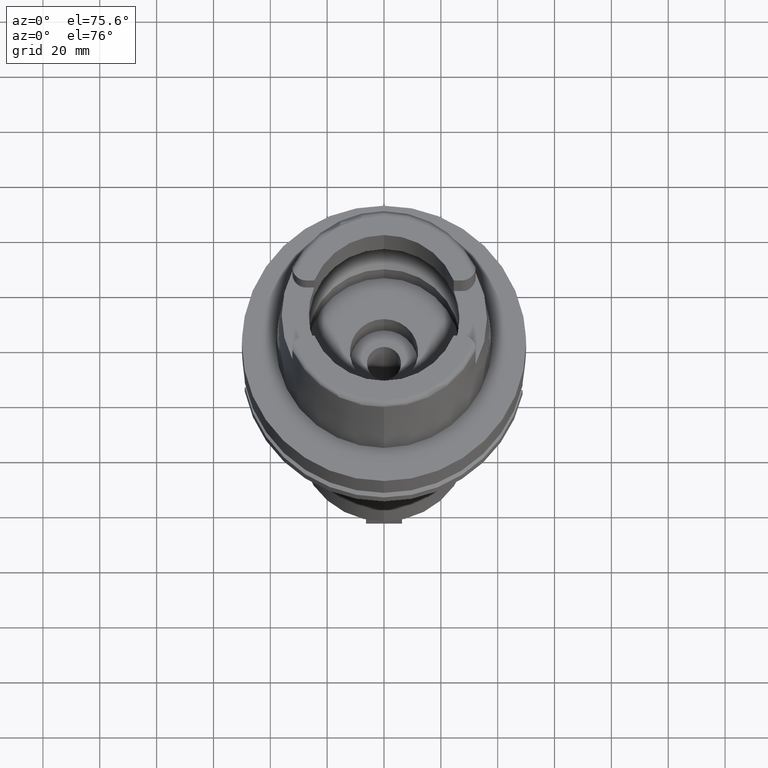
[diagram: clean part render]
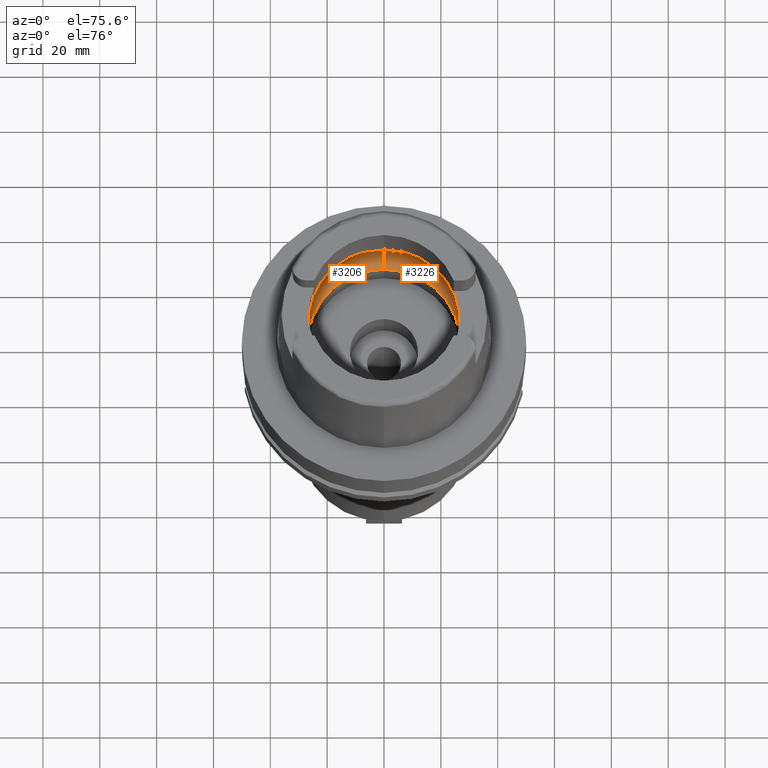
[diagram: same view with one multi-face feature highlighted, each face labeled with its STEP entity id]
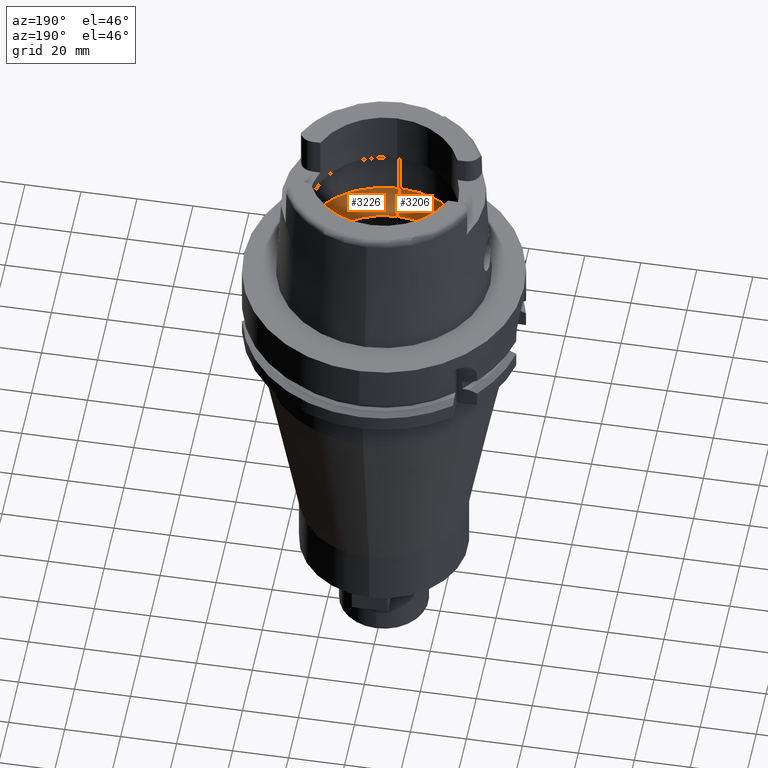
[diagram: same view with one multi-face feature highlighted, each face labeled with its STEP entity id]
A machine part, auxiliary view. The highlighted faces form ONE feature: a constant-radius fillet chain: 2 tangent blend faces with common blend radius 12 mm. The faces share edges in the B-rep.
A second angle (auxiliary view) of the same feature is appended — it is thin or edge-on in the first view.
Their STEP definitions:
[1] entity #3226 (Torus):
#660=CARTESIAN_POINT('',(0.E0,-1.95E1,9.496624327026E0));
#661=DIRECTION('',(-1.E0,0.E0,0.E0));
#662=DIRECTION('',(0.E0,-6.166666666667E-1,-7.872243785746E-1));
#663=AXIS2_PLACEMENT_3D('',#660,#661,#662);
#676=CARTESIAN_POINT('',(3.148971910754E1,0.E0,9.E0));
#677=CARTESIAN_POINT('',(3.148971910754E1,-2.740816369241E-1,9.E0));
#678=CARTESIAN_POINT('',(3.148416657244E1,-8.216274657312E-1,9.037606582852E0));
#679=CARTESIAN_POINT('',(3.145843229729E1,-1.626122314408E0,9.205188491873E0));
#680=CARTESIAN_POINT('',(3.142817542026E1,-2.140654635827E0,9.388263020288E0));
#681=CARTESIAN_POINT('',(3.140918884336E1,-2.390158196044E0,9.496624327026E0));
#686=CARTESIAN_POINT('',(0.E0,0.E0,9.496624327026E0));
#687=DIRECTION('',(0.E0,0.E0,-1.E0));
#688=DIRECTION('',(9.971171061384E-1,-7.587803796965E-2,0.E0));
#689=AXIS2_PLACEMENT_3D('',#686,#687,#688);
#694=CARTESIAN_POINT('',(0.E0,0.E0,4.993178413024E-2));
#695=DIRECTION('',(0.E0,0.E0,1.E0));
#696=DIRECTION('',(0.E0,-1.E0,0.E0));
#697=AXIS2_PLACEMENT_3D('',#694,#695,#696);
#702=CARTESIAN_POINT('',(0.E0,1.95E1,9.496624327026E0));
#703=DIRECTION('',(1.E0,0.E0,0.E0));
#704=DIRECTION('',(0.E0,6.166666666667E-1,-7.872243785746E-1));
#705=AXIS2_PLACEMENT_3D('',#702,#703,#704);
#710=CARTESIAN_POINT('',(0.E0,0.E0,9.496624327026E0));
#711=DIRECTION('',(0.E0,0.E0,-1.E0));
#712=DIRECTION('',(0.E0,1.E0,0.E0));
#713=AXIS2_PLACEMENT_3D('',#710,#711,#712);
#718=CARTESIAN_POINT('',(3.140918884336E1,2.390158196044E0,9.496624327026E0));
#719=CARTESIAN_POINT('',(3.142817530553E1,2.140656143518E0,9.388263675090E0));
#720=CARTESIAN_POINT('',(3.145843215351E1,1.626125992770E0,9.205189397203E0));
#721=CARTESIAN_POINT('',(3.148416663622E1,8.216256622719E-1,9.037606172252E0));
#722=CARTESIAN_POINT('',(3.148971910754E1,2.740808193429E-1,9.E0));
#723=CARTESIAN_POINT('',(3.148971910754E1,0.E0,9.E0));
#735=CARTESIAN_POINT('',(3.140918884336E1,-2.390158196044E0,9.496624327026E0));
#766=CARTESIAN_POINT('',(3.140918884336E1,2.390158196044E0,9.496624327026E0));
#2525=CARTESIAN_POINT('',(0.E0,-3.15E1,9.496624327026E0));
#2526=VERTEX_POINT('',#2525);
#2527=CARTESIAN_POINT('',(0.E0,3.15E1,9.496624327026E0));
#2528=VERTEX_POINT('',#2527);
#2533=VERTEX_POINT('',#735);
#2535=VERTEX_POINT('',#676);
#2536=VERTEX_POINT('',#766);
#2537=CARTESIAN_POINT('',(0.E0,2.69E1,4.993178413024E-2));
#2538=VERTEX_POINT('',#2537);
#2539=CARTESIAN_POINT('',(0.E0,-2.69E1,4.993178413024E-2));
#2540=VERTEX_POINT('',#2539);
#3207=CARTESIAN_POINT('',(0.E0,0.E0,9.496624327026E0));
#3208=DIRECTION('',(0.E0,0.E0,1.E0));
#3209=DIRECTION('',(0.E0,1.E0,0.E0));
#3210=AXIS2_PLACEMENT_3D('',#3207,#3208,#3209);
#3211=TOROIDAL_SURFACE('',#3210,1.95E1,1.2E1);
#3213=ORIENTED_EDGE('',*,*,#3212,.T.);
#3215=ORIENTED_EDGE('',*,*,#3214,.T.);
#3216=ORIENTED_EDGE('',*,*,#3201,.F.);
#3218=ORIENTED_EDGE('',*,*,#3217,.T.);
#3219=ORIENTED_EDGE('',*,*,#3197,.T.);
#3221=ORIENTED_EDGE('',*,*,#3220,.T.);
#3223=ORIENTED_EDGE('',*,*,#3222,.T.);
#3224=EDGE_LOOP('',(#3213,#3215,#3216,#3218,#3219,#3221,#3223));
#3225=FACE_OUTER_BOUND('',#3224,.F.);
#664=CIRCLE('',#663,1.2E1);
#682=B_SPLINE_CURVE_WITH_KNOTS('',3,(#676,#677,#678,#679,#680,#681),
.UNSPECIFIED.,.F.,.F.,(4,1,1,4),(0.E0,3.333333333333E-1,6.666666666667E-1,1.E0),
.UNSPECIFIED.);
#690=CIRCLE('',#689,3.15E1);
#698=CIRCLE('',#697,2.69E1);
#706=CIRCLE('',#705,1.2E1);
#714=CIRCLE('',#713,3.15E1);
#724=B_SPLINE_CURVE_WITH_KNOTS('',3,(#718,#719,#720,#721,#722,#723),
.UNSPECIFIED.,.F.,.F.,(4,1,1,4),(0.E0,3.333333333333E-1,6.666666666667E-1,1.E0),
.UNSPECIFIED.);
#3197=EDGE_CURVE('',#2538,#2528,#706,.T.);
#3201=EDGE_CURVE('',#2540,#2526,#664,.T.);
#3212=EDGE_CURVE('',#2535,#2533,#682,.T.);
#3214=EDGE_CURVE('',#2533,#2526,#690,.T.);
#3217=EDGE_CURVE('',#2540,#2538,#698,.T.);
#3220=EDGE_CURVE('',#2528,#2536,#714,.T.);
#3222=EDGE_CURVE('',#2536,#2535,#724,.T.);
#3226=ADVANCED_FACE('',(#3225),#3211,.F.);
[2] entity #3206 (Torus):
#580=CARTESIAN_POINT('',(-3.140918884336E1,-2.390158196044E0,9.496624327026E0));
#624=CARTESIAN_POINT('',(-3.140918884336E1,-2.390158196044E0,9.496624327026E0));
#625=CARTESIAN_POINT('',(-3.142817545704E1,-2.140654152533E0,9.388262810390E0));
#626=CARTESIAN_POINT('',(-3.145843235401E1,-1.626121130666E0,9.205188134635E0));
#627=CARTESIAN_POINT('',(-3.148416659375E1,-8.216262390445E-1,
9.037606438216E0));
#628=CARTESIAN_POINT('',(-3.148971910754E1,-2.740811097498E-1,9.E0));
#629=CARTESIAN_POINT('',(-3.148971910754E1,0.E0,9.E0));
#634=CARTESIAN_POINT('',(-3.148971910754E1,0.E0,9.E0));
#635=CARTESIAN_POINT('',(-3.148971910754E1,2.740813517952E-1,9.E0));
#636=CARTESIAN_POINT('',(-3.148416661469E1,8.216269012394E-1,9.037606318337E0));
#637=CARTESIAN_POINT('',(-3.145843209623E1,1.626127188331E0,9.205189758010E0));
#638=CARTESIAN_POINT('',(-3.142817526839E1,2.140656631637E0,9.388263887083E0));
#639=CARTESIAN_POINT('',(-3.140918884336E1,2.390158196044E0,9.496624327026E0));
#644=CARTESIAN_POINT('',(0.E0,0.E0,9.496624327026E0));
#645=DIRECTION('',(0.E0,0.E0,-1.E0));
#646=DIRECTION('',(-9.971171061384E-1,7.587803796965E-2,0.E0));
#647=AXIS2_PLACEMENT_3D('',#644,#645,#646);
#652=CARTESIAN_POINT('',(0.E0,0.E0,4.993178413024E-2));
#653=DIRECTION('',(0.E0,0.E0,1.E0));
#654=DIRECTION('',(0.E0,1.E0,0.E0));
#655=AXIS2_PLACEMENT_3D('',#652,#653,#654);
#660=CARTESIAN_POINT('',(0.E0,-1.95E1,9.496624327026E0));
#661=DIRECTION('',(-1.E0,0.E0,0.E0));
#662=DIRECTION('',(0.E0,-6.166666666667E-1,-7.872243785746E-1));
#663=AXIS2_PLACEMENT_3D('',#660,#661,#662);
#668=CARTESIAN_POINT('',(0.E0,0.E0,9.496624327026E0));
#669=DIRECTION('',(0.E0,0.E0,-1.E0));
#670=DIRECTION('',(0.E0,-1.E0,0.E0));
#671=AXIS2_PLACEMENT_3D('',#668,#669,#670);
#702=CARTESIAN_POINT('',(0.E0,1.95E1,9.496624327026E0));
#703=DIRECTION('',(1.E0,0.E0,0.E0));
#704=DIRECTION('',(0.E0,6.166666666667E-1,-7.872243785746E-1));
#705=AXIS2_PLACEMENT_3D('',#702,#703,#704);
#2524=VERTEX_POINT('',#580);
#2525=CARTESIAN_POINT('',(0.E0,-3.15E1,9.496624327026E0));
#2526=VERTEX_POINT('',#2525);
#2527=CARTESIAN_POINT('',(0.E0,3.15E1,9.496624327026E0));
#2528=VERTEX_POINT('',#2527);
#2529=CARTESIAN_POINT('',(-3.140918884336E1,2.390158196044E0,9.496624327026E0));
#2530=VERTEX_POINT('',#2529);
#2531=CARTESIAN_POINT('',(-3.148971910754E1,0.E0,9.E0));
#2532=VERTEX_POINT('',#2531);
#2537=CARTESIAN_POINT('',(0.E0,2.69E1,4.993178413024E-2));
#2538=VERTEX_POINT('',#2537);
#2539=CARTESIAN_POINT('',(0.E0,-2.69E1,4.993178413024E-2));
#2540=VERTEX_POINT('',#2539);
#3189=CARTESIAN_POINT('',(0.E0,0.E0,9.496624327026E0));
#3190=DIRECTION('',(0.E0,0.E0,1.E0));
#3191=DIRECTION('',(0.E0,1.E0,0.E0));
#3192=AXIS2_PLACEMENT_3D('',#3189,#3190,#3191);
#3193=TOROIDAL_SURFACE('',#3192,1.95E1,1.2E1);
#3194=ORIENTED_EDGE('',*,*,#3170,.T.);
#3195=ORIENTED_EDGE('',*,*,#3181,.T.);
#3196=ORIENTED_EDGE('',*,*,#3152,.T.);
#3198=ORIENTED_EDGE('',*,*,#3197,.F.);
#3200=ORIENTED_EDGE('',*,*,#3199,.T.);
#3202=ORIENTED_EDGE('',*,*,#3201,.T.);
#3203=ORIENTED_EDGE('',*,*,#3145,.T.);
#3204=EDGE_LOOP('',(#3194,#3195,#3196,#3198,#3200,#3202,#3203));
#3205=FACE_OUTER_BOUND('',#3204,.F.);
#630=B_SPLINE_CURVE_WITH_KNOTS('',3,(#624,#625,#626,#627,#628,#629),
.UNSPECIFIED.,.F.,.F.,(4,1,1,4),(0.E0,3.333333333333E-1,6.666666666667E-1,1.E0),
.UNSPECIFIED.);
#640=B_SPLINE_CURVE_WITH_KNOTS('',3,(#634,#635,#636,#637,#638,#639),
.UNSPECIFIED.,.F.,.F.,(4,1,1,4),(0.E0,3.333333333333E-1,6.666666666667E-1,1.E0),
.UNSPECIFIED.);
#648=CIRCLE('',#647,3.15E1);
#656=CIRCLE('',#655,2.69E1);
#664=CIRCLE('',#663,1.2E1);
#672=CIRCLE('',#671,3.15E1);
#706=CIRCLE('',#705,1.2E1);
#3145=EDGE_CURVE('',#2526,#2524,#672,.T.);
#3152=EDGE_CURVE('',#2530,#2528,#648,.T.);
#3170=EDGE_CURVE('',#2524,#2532,#630,.T.);
#3181=EDGE_CURVE('',#2532,#2530,#640,.T.);
#3197=EDGE_CURVE('',#2538,#2528,#706,.T.);
#3199=EDGE_CURVE('',#2538,#2540,#656,.T.);
#3201=EDGE_CURVE('',#2540,#2526,#664,.T.);
#3206=ADVANCED_FACE('',(#3205),#3193,.F.);